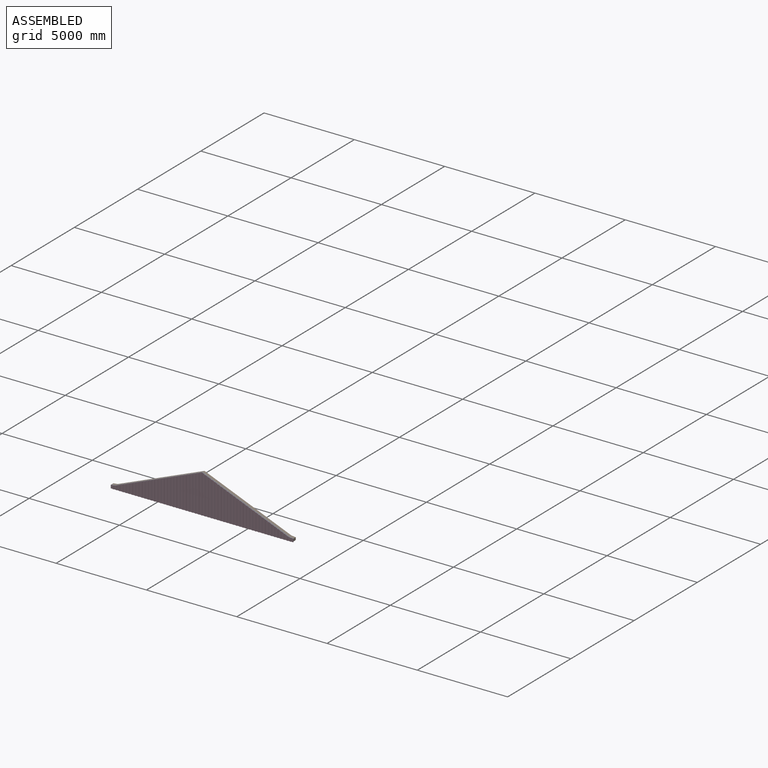
[diagram: assembled view]
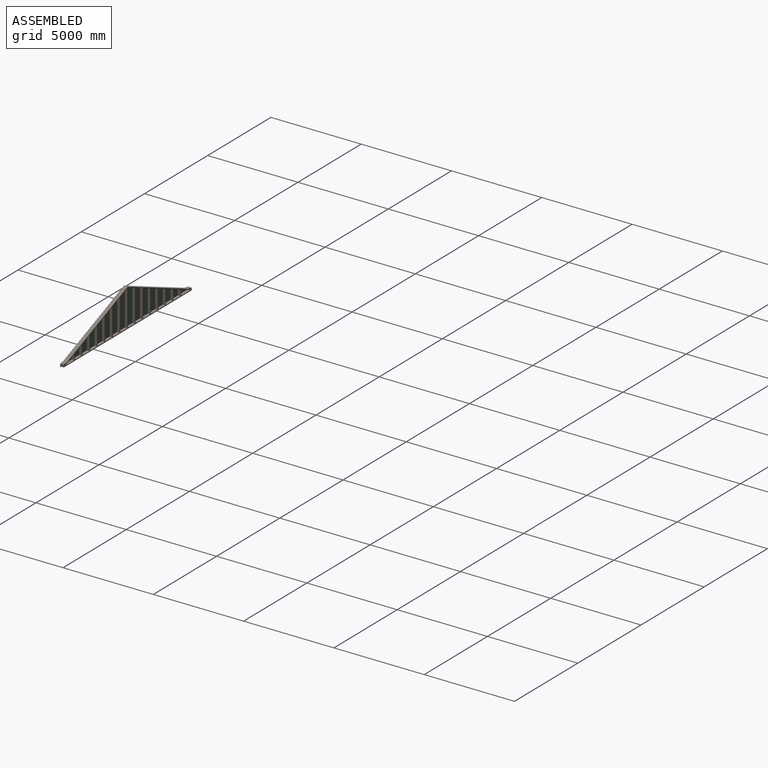
[diagram: assembled view, second angle]
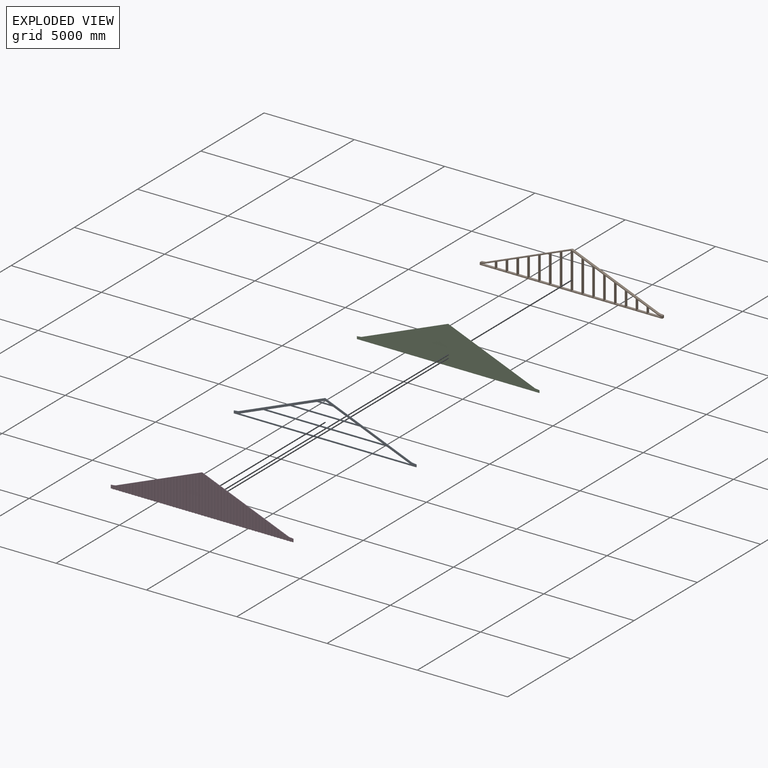
[diagram: exploded view]
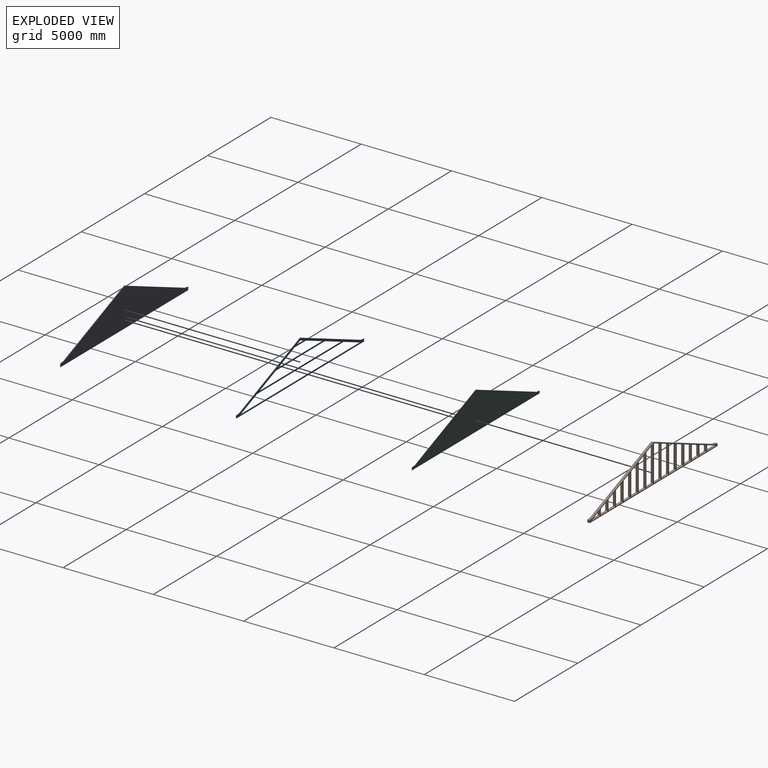
[diagram: exploded view, second angle]
ASSEMBLY  parts=4 mates=3
PART A: 24 faces, bbox 10100x28x2110.3 mm
  f0: plane 4808.93x1942.93mm, normal (-0.37,0,0.93), area 145224.8mm2, adj f1,f15,f16,f17
  f1: plane 241.07x28mm, normal (-0.11,0,0.99), area 6793mm2, adj f0,f2,f15,f16
  f2: plane 140.1x28mm, normal (-1,0,0), area 3922.9mm2, adj f1,f3,f15,f16
  f3: plane 10100x28mm, normal (0,0,-1), area 282800mm2, adj f2,f15,f16,f19
  f4: plane 9459.33x28mm, normal (0,0,1), area 264861.2mm2, adj f5,f15,f16,f20
  f5: plane 1311.8x530mm, normal (0.37,0,-0.93), area 39614.9mm2, adj f4,f6,f15,f16
  f6: plane 6835.74x28mm, normal (0,0,-1), area 191400.6mm2, adj f5,f15,f16,f20
  f7: plane 6489.22x28mm, normal (0,0,1), area 181698.3mm2, adj f8,f15,f16,f21
  f8: plane 1311.8x530mm, normal (0.37,0,-0.93), area 39614.9mm2, adj f7,f9,f15,f16
  f9: plane 3865.63x28mm, normal (0,0,-1), area 108237.7mm2, adj f8,f15,f16,f21
  f10: plane 3519.12x28mm, normal (0,0,1), area 98535.3mm2, adj f11,f15,f16,f22
  f11: plane 1311.8x530mm, normal (0.37,0,-0.93), area 39614.9mm2, adj f10,f12,f15,f16
  f12: plane 895.53x28mm, normal (0,0,-1), area 25074.8mm2, adj f11,f15,f16,f22
  f13: plane 549.02x28mm, normal (0,0,1), area 15372.4mm2, adj f14,f15,f16,f23
  f14: plane 274.51x110.91mm, normal (0.37,0,-0.93), area 8289.8mm2, adj f13,f15,f16,f23
  f15: plane 10100x2110.33mm, normal (0,-1,0), area 2765023.7mm2, adj f0,f1,f2,f3,f4,f5,f6,f7
  f16: plane 10100x2110.33mm, normal (0,1,0), area 2765023.7mm2, adj f0,f1,f2,f3,f4,f5,f6,f7
  f17: plane 4808.93x1942.93mm, normal (0.37,0,0.93), area 145224.8mm2, adj f0,f15,f16,f18
  f18: plane 241.07x28mm, normal (0.11,0,0.99), area 6793mm2, adj f15,f16,f17,f19
  f19: plane 140.1x28mm, normal (1,0,0), area 3922.9mm2, adj f3,f15,f16,f18
  f20: plane 1311.8x530mm, normal (-0.37,0,-0.93), area 39614.9mm2, adj f4,f6,f15,f16
  f21: plane 1311.8x530mm, normal (-0.37,0,-0.93), area 39614.9mm2, adj f7,f9,f15,f16
  f22: plane 1311.8x530mm, normal (-0.37,0,-0.93), area 39614.9mm2, adj f10,f12,f15,f16
  f23: plane 274.51x110.91mm, normal (-0.37,0,-0.93), area 8289.8mm2, adj f13,f14,f15,f16
PART B: 71 faces, bbox 10100x145x2110.3 mm
  f0: plane 555x224.23mm, normal (0.37,0,-0.93), area 86795.1mm2, adj f1,f34,f35,f36
  f1: plane 1522.88x145mm, normal (-1,0,0), area 220817.1mm2, adj f0,f2,f35,f36
  f2: plane 555x145mm, normal (0,0,1), area 80475mm2, adj f1,f34,f35,f36
  f3: plane 555x145mm, normal (0,0,1), area 80475mm2, adj f4,f26,f35,f36
  f4: plane 1056.23x145mm, normal (1,0,0), area 153152.8mm2, adj f3,f5,f35,f36
  f5: plane 555x224.23mm, normal (0.37,0,-0.93), area 86795.1mm2, adj f4,f26,f35,f36
  f6: plane 1038.05x145mm, normal (-1,0,0), area 150516.5mm2, adj f7,f27,f35,f36
  f7: plane 555x145mm, normal (0,0,1), area 80475mm2, adj f6,f8,f35,f36
  f8: plane 813.81x145mm, normal (1,0,0), area 118002.5mm2, adj f7,f27,f35,f36
  f9: plane 769.25x310.8mm, normal (0.37,0,-0.93), area 120301.3mm2, adj f10,f28,f35,f36
  f10: plane 310.8x145mm, normal (-1,0,0), area 45065.7mm2, adj f9,f28,f35,f36
  f11: plane 4808.93x1942.93mm, normal (-0.37,0,0.93), area 752057.1mm2, adj f12,f35,f36,f48
  f12: plane 241.07x145mm, normal (-0.11,0,0.99), area 35178.1mm2, adj f11,f13,f35,f36
  f13: plane 145x140.1mm, normal (-1,0,0), area 20315.2mm2, adj f12,f29,f35,f36
  f14: plane 555x145mm, normal (0,0,1), area 80475mm2, adj f15,f30,f35,f36
  f15: plane 571.39x145mm, normal (1,0,0), area 82852.2mm2, adj f14,f16,f35,f36
  f16: plane 555x224.23mm, normal (0.37,0,-0.93), area 86795.1mm2, adj f15,f30,f35,f36
  f17: plane 553.21x145mm, normal (-1,0,0), area 80215.9mm2, adj f18,f31,f35,f36
  f18: plane 555x145mm, normal (0,0,1), area 80475mm2, adj f17,f19,f35,f36
  f19: plane 328.98x145mm, normal (1,0,0), area 47701.9mm2, adj f18,f31,f35,f36
  f20: plane 555x145mm, normal (0,0,1), area 80475mm2, adj f21,f32,f35,f36
  f21: plane 1783.47x145mm, normal (1,0,0), area 258603.6mm2, adj f20,f22,f35,f36
  f22: plane 555x224.23mm, normal (0.37,0,-0.93), area 86795.1mm2, adj f21,f32,f35,f36
  f23: plane 1765.29x145mm, normal (-1,0,0), area 255967.3mm2, adj f24,f33,f35,f36
  f24: plane 555x145mm, normal (0,0,1), area 80475mm2, adj f23,f25,f35,f36
  f25: plane 1541.06x145mm, normal (1,0,0), area 223453.3mm2, adj f24,f33,f35,f36
  f26: plane 1280.46x145mm, normal (-1,0,0), area 185666.8mm2, adj f3,f5,f35,f36
  f27: plane 555x224.23mm, normal (0.37,0,-0.93), area 86795.1mm2, adj f6,f8,f35,f36
  f28: plane 769.25x145mm, normal (0,0,1), area 111541.4mm2, adj f9,f10,f35,f36
  f29: plane 10100x145mm, normal (0,0,-1), area 1464500mm2, adj f13,f35,f36,f50
  f30: plane 795.63x145mm, normal (-1,0,0), area 115366.2mm2, adj f14,f16,f35,f36
  f31: plane 555x224.23mm, normal (0.37,0,-0.93), area 86795.1mm2, adj f17,f19,f35,f36
  f32: plane 2007.71x145mm, normal (-1,0,0), area 291117.6mm2, adj f20,f22,f35,f36
  f33: plane 555x224.23mm, normal (0.37,0,-0.93), area 86795.1mm2, adj f23,f25,f35,f36
  f34: plane 1298.64x145mm, normal (1,0,0), area 188303.1mm2, adj f0,f2,f35,f36
  f35: plane 10100x2110.33mm, normal (0,1,0), area 1710469.9mm2, adj f0,f1,f2,f3,f4,f5,f6,f7
  f36: plane 10100x2110.33mm, normal (0,-1,0), area 1710469.9mm2, adj f0,f1,f2,f3,f4,f5,f6,f7
  f37: plane 555x224.23mm, normal (-0.37,0,-0.93), area 86795.1mm2, adj f35,f36,f38,f70
  f38: plane 1522.88x145mm, normal (1,0,0), area 220817.1mm2, adj f35,f36,f37,f39
  f39: plane 555x145mm, normal (0,0,1), area 80475mm2, adj f35,f36,f38,f70
  f40: plane 555x145mm, normal (0,0,1), area 80475mm2, adj f35,f36,f41,f63
  f41: plane 1056.23x145mm, normal (-1,0,0), area 153152.8mm2, adj f35,f36,f40,f42
  f42: plane 555x224.23mm, normal (-0.37,0,-0.93), area 86795.1mm2, adj f35,f36,f41,f63
  f43: plane 1038.05x145mm, normal (1,0,0), area 150516.5mm2, adj f35,f36,f44,f64
  f44: plane 555x145mm, normal (0,0,1), area 80475mm2, adj f35,f36,f43,f45
  f45: plane 813.81x145mm, normal (-1,0,0), area 118002.5mm2, adj f35,f36,f44,f64
  f46: plane 769.25x310.8mm, normal (-0.37,0,-0.93), area 120301.3mm2, adj f35,f36,f47,f65
  f47: plane 310.8x145mm, normal (1,0,0), area 45065.7mm2, adj f35,f36,f46,f65
  f48: plane 4808.93x1942.93mm, normal (0.37,0,0.93), area 752057.1mm2, adj f11,f35,f36,f49
  f49: plane 241.07x145mm, normal (0.11,0,0.99), area 35178.1mm2, adj f35,f36,f48,f50
  f50: plane 145x140.1mm, normal (1,0,0), area 20315.2mm2, adj f29,f35,f36,f49
  f51: plane 555x145mm, normal (0,0,1), area 80475mm2, adj f35,f36,f52,f66
  f52: plane 571.39x145mm, normal (-1,0,0), area 82852.2mm2, adj f35,f36,f51,f53
  f53: plane 555x224.23mm, normal (-0.37,0,-0.93), area 86795.1mm2, adj f35,f36,f52,f66
  f54: plane 553.21x145mm, normal (1,0,0), area 80215.9mm2, adj f35,f36,f55,f67
  f55: plane 555x145mm, normal (0,0,1), area 80475mm2, adj f35,f36,f54,f56
  f56: plane 328.98x145mm, normal (-1,0,0), area 47701.9mm2, adj f35,f36,f55,f67
  f57: plane 555x145mm, normal (0,0,1), area 80475mm2, adj f35,f36,f58,f68
  f58: plane 1783.47x145mm, normal (-1,0,0), area 258603.6mm2, adj f35,f36,f57,f59
  f59: plane 555x224.23mm, normal (-0.37,0,-0.93), area 86795.1mm2, adj f35,f36,f58,f68
  f60: plane 1765.29x145mm, normal (1,0,0), area 255967.3mm2, adj f35,f36,f61,f69
  f61: plane 555x145mm, normal (0,0,1), area 80475mm2, adj f35,f36,f60,f62
  f62: plane 1541.06x145mm, normal (-1,0,0), area 223453.3mm2, adj f35,f36,f61,f69
  f63: plane 1280.46x145mm, normal (1,0,0), area 185666.8mm2, adj f35,f36,f40,f42
  f64: plane 555x224.23mm, normal (-0.37,0,-0.93), area 86795.1mm2, adj f35,f36,f43,f45
  f65: plane 769.25x145mm, normal (0,0,1), area 111541.4mm2, adj f35,f36,f46,f47
  f66: plane 795.63x145mm, normal (1,0,0), area 115366.2mm2, adj f35,f36,f51,f53
  f67: plane 555x224.23mm, normal (-0.37,0,-0.93), area 86795.1mm2, adj f35,f36,f54,f56
  f68: plane 2007.71x145mm, normal (1,0,0), area 291117.6mm2, adj f35,f36,f57,f59
  f69: plane 555x224.23mm, normal (-0.37,0,-0.93), area 86795.1mm2, adj f35,f36,f60,f62
  f70: plane 1298.64x145mm, normal (-1,0,0), area 188303.1mm2, adj f35,f36,f37,f39
PART C: 9 faces, bbox 10100x9x2110.3 mm
  f0: plane 4808.93x1942.93mm, normal (-0.37,0,0.93), area 46679.4mm2, adj f1,f4,f5,f6
  f1: plane 241.07x27.29mm, normal (-0.11,0,0.99), area 2183.5mm2, adj f0,f2,f4,f5
  f2: plane 140.1x9mm, normal (-1,0,0), area 1260.9mm2, adj f1,f3,f4,f5
  f3: plane 10100x9mm, normal (0,0,-1), area 90900mm2, adj f2,f4,f5,f8
  f4: plane 10100x2110.33mm, normal (0,-1,0), area 11027578.8mm2, adj f0,f1,f2,f3,f6,f7,f8
  f5: plane 10100x2110.33mm, normal (0,1,0), area 11027578.8mm2, adj f0,f1,f2,f3,f6,f7,f8
  f6: plane 4808.93x1942.93mm, normal (0.37,0,0.93), area 46679.4mm2, adj f0,f4,f5,f7
  f7: plane 241.07x27.29mm, normal (0.11,0,0.99), area 2183.5mm2, adj f4,f5,f6,f8
  f8: plane 140.1x9mm, normal (1,0,0), area 1260.9mm2, adj f3,f4,f5,f7
PART D: 237 faces, bbox 10100x44x2145.3 mm
  f0: plane 368.83x131mm, normal (0,-1,0), area 44849.9mm2, adj f1,f115,f118,f119
  f1: plane 368.83x22mm, normal (-1,0,0), area 8114.2mm2, adj f0,f2,f118,f119
  f2: plane 386.61x44mm, normal (0,-1,0), area 16619.6mm2, adj f1,f3,f118,f119
  f3: plane 386.61x22mm, normal (1,0,0), area 8505.3mm2, adj f2,f4,f118,f119
  f4: plane 439.53x131mm, normal (0,-1,0), area 54112.2mm2, adj f3,f5,f118,f119
  f5: plane 439.53x22mm, normal (-1,0,0), area 9669.7mm2, adj f4,f6,f118,f119
  f6: plane 457.31x44mm, normal (0,-1,0), area 19730.6mm2, adj f5,f7,f118,f119
  f7: plane 457.31x22mm, normal (1,0,0), area 10060.8mm2, adj f6,f8,f118,f119
  f8: plane 510.24x131mm, normal (0,-1,0), area 63374.5mm2, adj f7,f9,f118,f119
  f9: plane 510.24x22mm, normal (-1,0,0), area 11225.2mm2, adj f8,f10,f118,f119
  f10: plane 528.02x44mm, normal (0,-1,0), area 22841.6mm2, adj f9,f11,f118,f119
  f11: plane 528.02x22mm, normal (1,0,0), area 11616.3mm2, adj f10,f12,f118,f119
  f12: plane 580.94x131mm, normal (0,-1,0), area 72636.8mm2, adj f11,f13,f118,f119
  f13: plane 580.94x22mm, normal (-1,0,0), area 12780.7mm2, adj f12,f14,f118,f119
  f14: plane 598.72x44mm, normal (0,-1,0), area 25952.6mm2, adj f13,f15,f118,f119
  f15: plane 598.72x22mm, normal (1,0,0), area 13171.8mm2, adj f14,f16,f118,f119
  f16: plane 651.65x131mm, normal (0,-1,0), area 81899.1mm2, adj f15,f17,f118,f119
  f17: plane 651.65x22mm, normal (-1,0,0), area 14336.2mm2, adj f16,f18,f118,f119
  f18: plane 669.42x44mm, normal (0,-1,0), area 29063.6mm2, adj f17,f19,f118,f119
  f19: plane 669.42x22mm, normal (1,0,0), area 14727.3mm2, adj f18,f20,f118,f119
  f20: plane 722.35x131mm, normal (0,-1,0), area 91161.4mm2, adj f19,f21,f118,f119
  f21: plane 722.35x22mm, normal (-1,0,0), area 15891.7mm2, adj f20,f22,f118,f119
  f22: plane 740.13x44mm, normal (0,-1,0), area 32174.6mm2, adj f21,f23,f118,f119
  f23: plane 740.13x22mm, normal (1,0,0), area 16282.8mm2, adj f22,f24,f118,f119
  f24: plane 793.06x131mm, normal (0,-1,0), area 100423.7mm2, adj f23,f25,f118,f119
  f25: plane 793.06x22mm, normal (-1,0,0), area 17447.2mm2, adj f24,f26,f118,f119
  f26: plane 810.83x44mm, normal (0,-1,0), area 35285.6mm2, adj f25,f27,f118,f119
  f27: plane 810.83x22mm, normal (1,0,0), area 17838.3mm2, adj f26,f28,f118,f119
  f28: plane 863.76x131mm, normal (0,-1,0), area 109686mm2, adj f27,f29,f118,f119
  f29: plane 863.76x22mm, normal (-1,0,0), area 19002.7mm2, adj f28,f30,f118,f119
  f30: plane 881.54x44mm, normal (0,-1,0), area 38396.6mm2, adj f29,f31,f118,f119
  f31: plane 881.54x22mm, normal (1,0,0), area 19393.8mm2, adj f30,f32,f118,f119
  f32: plane 934.47x131mm, normal (0,-1,0), area 118948.3mm2, adj f31,f33,f118,f119
  f33: plane 934.47x22mm, normal (-1,0,0), area 20558.2mm2, adj f32,f34,f118,f119
  f34: plane 952.24x44mm, normal (0,-1,0), area 41507.6mm2, adj f33,f35,f118,f119
  f35: plane 952.24x22mm, normal (1,0,0), area 20949.3mm2, adj f34,f36,f118,f119
  f36: plane 1005.17x131mm, normal (0,-1,0), area 128210.6mm2, adj f35,f37,f118,f119
  f37: plane 1005.17x22mm, normal (-1,0,0), area 22113.7mm2, adj f36,f38,f118,f119
  f38: plane 1022.95x44mm, normal (0,-1,0), area 44618.6mm2, adj f37,f39,f118,f119
  f39: plane 1022.95x22mm, normal (1,0,0), area 22504.8mm2, adj f38,f40,f118,f119
  f40: plane 1075.88x131mm, normal (0,-1,0), area 137472.9mm2, adj f39,f41,f118,f119
  f41: plane 1075.88x22mm, normal (-1,0,0), area 23669.3mm2, adj f40,f42,f118,f119
  f42: plane 1093.65x44mm, normal (0,-1,0), area 47729.6mm2, adj f41,f43,f118,f119
  f43: plane 1093.65x22mm, normal (1,0,0), area 24060.3mm2, adj f42,f44,f118,f119
  f44: plane 1146.58x131mm, normal (0,-1,0), area 146735.2mm2, adj f43,f45,f118,f119
  f45: plane 1146.58x22mm, normal (-1,0,0), area 25224.8mm2, adj f44,f46,f118,f119
  f46: plane 1164.36x44mm, normal (0,-1,0), area 50840.6mm2, adj f45,f47,f118,f119
  f47: plane 1164.36x22mm, normal (1,0,0), area 25615.8mm2, adj f46,f48,f118,f119
  f48: plane 1217.28x131mm, normal (0,-1,0), area 155997.5mm2, adj f47,f49,f118,f119
  f49: plane 1217.28x22mm, normal (-1,0,0), area 26780.3mm2, adj f48,f50,f118,f119
  f50: plane 1235.06x44mm, normal (0,-1,0), area 53951.6mm2, adj f49,f51,f118,f119
  f51: plane 1235.06x22mm, normal (1,0,0), area 27171.3mm2, adj f50,f52,f118,f119
  f52: plane 1287.99x131mm, normal (0,-1,0), area 165259.8mm2, adj f51,f53,f118,f119
  f53: plane 1287.99x22mm, normal (-1,0,0), area 28335.8mm2, adj f52,f54,f118,f119
  f54: plane 1305.77x44mm, normal (0,-1,0), area 57062.6mm2, adj f53,f55,f118,f119
  f55: plane 1305.77x22mm, normal (1,0,0), area 28726.9mm2, adj f54,f56,f118,f119
  f56: plane 1358.69x131mm, normal (0,-1,0), area 174522.1mm2, adj f55,f57,f118,f119
  f57: plane 1358.69x22mm, normal (-1,0,0), area 29891.3mm2, adj f56,f58,f118,f119
  f58: plane 1376.47x44mm, normal (0,-1,0), area 60173.6mm2, adj f57,f59,f118,f119
  f59: plane 1376.47x22mm, normal (1,0,0), area 30282.4mm2, adj f58,f60,f118,f119
  f60: plane 1429.4x131mm, normal (0,-1,0), area 183784.4mm2, adj f59,f61,f118,f119
  f61: plane 1429.4x22mm, normal (-1,0,0), area 31446.8mm2, adj f60,f62,f118,f119
  f62: plane 1447.18x44mm, normal (0,-1,0), area 63284.6mm2, adj f61,f63,f118,f119
  f63: plane 1447.18x22mm, normal (1,0,0), area 31837.9mm2, adj f62,f64,f118,f119
  f64: plane 1500.1x131mm, normal (0,-1,0), area 193046.7mm2, adj f63,f65,f118,f119
  f65: plane 1500.1x22mm, normal (-1,0,0), area 33002.3mm2, adj f64,f66,f118,f119
  f66: plane 1517.88x44mm, normal (0,-1,0), area 66395.6mm2, adj f65,f67,f118,f119
  f67: plane 1517.88x22mm, normal (1,0,0), area 33393.4mm2, adj f66,f68,f118,f119
  f68: plane 1570.81x131mm, normal (0,-1,0), area 202309mm2, adj f67,f69,f118,f119
  f69: plane 1570.81x22mm, normal (-1,0,0), area 34557.8mm2, adj f68,f70,f118,f119
  f70: plane 1588.58x44mm, normal (0,-1,0), area 69506.6mm2, adj f69,f71,f118,f119
  f71: plane 1588.58x22mm, normal (1,0,0), area 34948.9mm2, adj f70,f72,f118,f119
  f72: plane 1641.51x131mm, normal (0,-1,0), area 211571.3mm2, adj f71,f73,f118,f119
  f73: plane 1641.51x22mm, normal (-1,0,0), area 36113.3mm2, adj f72,f74,f118,f119
  f74: plane 1659.29x44mm, normal (0,-1,0), area 72617.6mm2, adj f73,f75,f118,f119
  f75: plane 1659.29x22mm, normal (1,0,0), area 36504.4mm2, adj f74,f76,f118,f119
  f76: plane 1712.22x131mm, normal (0,-1,0), area 220833.6mm2, adj f75,f77,f118,f119
  f77: plane 1712.22x22mm, normal (-1,0,0), area 37668.8mm2, adj f76,f78,f118,f119
  f78: plane 1729.99x44mm, normal (0,-1,0), area 75728.6mm2, adj f77,f79,f118,f119
  f79: plane 1729.99x22mm, normal (1,0,0), area 38059.9mm2, adj f78,f80,f118,f119
  f80: plane 1782.92x131mm, normal (0,-1,0), area 230095.9mm2, adj f79,f81,f118,f119
  f81: plane 1782.92x22mm, normal (-1,0,0), area 39224.3mm2, adj f80,f82,f118,f119
  f82: plane 1800.7x44mm, normal (0,-1,0), area 78839.6mm2, adj f81,f83,f118,f119
  f83: plane 1800.7x22mm, normal (1,0,0), area 39615.4mm2, adj f82,f84,f118,f119
  f84: plane 1853.63x131mm, normal (0,-1,0), area 239358.2mm2, adj f83,f85,f118,f119
  f85: plane 1853.63x22mm, normal (-1,0,0), area 40779.8mm2, adj f84,f86,f118,f119
  f86: plane 1871.4x44mm, normal (0,-1,0), area 81950.6mm2, adj f85,f87,f118,f119
  f87: plane 1871.4x22mm, normal (1,0,0), area 41170.9mm2, adj f86,f88,f118,f119
  f88: plane 1924.33x131mm, normal (0,-1,0), area 248620.5mm2, adj f87,f89,f118,f119
  f89: plane 1924.33x22mm, normal (-1,0,0), area 42335.3mm2, adj f88,f90,f118,f119
  f90: plane 1942.11x44mm, normal (0,-1,0), area 85061.6mm2, adj f89,f91,f118,f119
  f91: plane 1942.11x22mm, normal (1,0,0), area 42726.4mm2, adj f90,f92,f118,f119
  f92: plane 1995.03x131mm, normal (0,-1,0), area 257882.8mm2, adj f91,f93,f118,f119
  f93: plane 1995.03x22mm, normal (-1,0,0), area 43890.8mm2, adj f92,f94,f118,f119
  f94: plane 2012.81x44mm, normal (0,-1,0), area 88172.6mm2, adj f93,f95,f118,f119
  f95: plane 2012.81x22mm, normal (1,0,0), area 44281.9mm2, adj f94,f96,f118,f119
  f96: plane 2065.74x131mm, normal (0,-1,0), area 267145.1mm2, adj f95,f97,f118,f119
  f97: plane 2065.74x22mm, normal (-1,0,0), area 45446.3mm2, adj f96,f98,f118,f119
  f98: plane 2083.52x44mm, normal (0,-1,0), area 91283.6mm2, adj f97,f99,f118,f119
  f99: plane 2083.52x22mm, normal (1,0,0), area 45837.4mm2, adj f98,f100,f118,f119
  f100: plane 2136.44x131mm, normal (0,-1,0), area 276407.4mm2, adj f99,f101,f118,f119
  f101: plane 2136.44x22mm, normal (-1,0,0), area 47001.8mm2, adj f100,f102,f118,f119
  f102: plane 2145.33x44mm, normal (0,-1,0), area 94199.1mm2, adj f101,f118,f119,f221,f236
  f103: plane 10100x2145.33mm, normal (0,1,0), area 11381078.8mm2, adj f116,f117,f118,f119,f234,f235,f236
  f104: plane 189.6x128mm, normal (0,-1,0), area 23340.9mm2, adj f105,f116,f117,f119
  f105: plane 189.6x22mm, normal (-1,0,0), area 4171.1mm2, adj f104,f106,f117,f119
  f106: plane 194.58x44mm, normal (0,-1,0), area 8451.8mm2, adj f105,f107,f117,f119
  f107: plane 194.58x22mm, normal (1,0,0), area 4280.7mm2, adj f106,f108,f117,f119
  f108: plane 227.42x131mm, normal (0,-1,0), area 27018.9mm2, adj f107,f109,f117,f118,f119
  f109: plane 227.42x22mm, normal (-1,0,0), area 5003.2mm2, adj f108,f110,f118,f119
  f110: plane 245.2x44mm, normal (0,-1,0), area 10397.6mm2, adj f109,f111,f118,f119
  f111: plane 245.2x22mm, normal (1,0,0), area 5394.3mm2, adj f110,f112,f118,f119
  f112: plane 298.12x131mm, normal (0,-1,0), area 35587.6mm2, adj f111,f113,f118,f119
  f113: plane 298.12x22mm, normal (-1,0,0), area 6558.7mm2, adj f112,f114,f118,f119
  f114: plane 315.9x44mm, normal (0,-1,0), area 13508.6mm2, adj f113,f115,f118,f119
  f115: plane 315.9x22mm, normal (1,0,0), area 6949.8mm2, adj f0,f114,f118,f119
  f116: plane 175.1x22mm, normal (-1,0,0), area 3852.3mm2, adj f103,f104,f117,f119
  f117: plane 241.07x44mm, normal (-0.11,0,0.99), area 6311.6mm2, adj f103,f104,f105,f106,f107,f108,f116,f118
  f118: plane 4808.93x1942.93mm, normal (-0.37,0,0.93), area 142815.8mm2, adj f0,f1,f2,f3,f4,f5,f6,f7
  f119: plane 10100x44mm, normal (0,0,-1), area 277376mm2, adj f0,f1,f2,f3,f4,f5,f6,f7
  f120: plane 368.83x131mm, normal (0,-1,0), area 44849.9mm2, adj f119,f121,f233,f236
  f121: plane 368.83x22mm, normal (1,0,0), area 8114.2mm2, adj f119,f120,f122,f236
  f122: plane 386.61x44mm, normal (0,-1,0), area 16619.6mm2, adj f119,f121,f123,f236
  f123: plane 386.61x22mm, normal (-1,0,0), area 8505.3mm2, adj f119,f122,f124,f236
  f124: plane 439.53x131mm, normal (0,-1,0), area 54112.2mm2, adj f119,f123,f125,f236
  f125: plane 439.53x22mm, normal (1,0,0), area 9669.7mm2, adj f119,f124,f126,f236
  f126: plane 457.31x44mm, normal (0,-1,0), area 19730.6mm2, adj f119,f125,f127,f236
  f127: plane 457.31x22mm, normal (-1,0,0), area 10060.8mm2, adj f119,f126,f128,f236
  f128: plane 510.24x131mm, normal (0,-1,0), area 63374.5mm2, adj f119,f127,f129,f236
  f129: plane 510.24x22mm, normal (1,0,0), area 11225.2mm2, adj f119,f128,f130,f236
  f130: plane 528.02x44mm, normal (0,-1,0), area 22841.6mm2, adj f119,f129,f131,f236
  f131: plane 528.02x22mm, normal (-1,0,0), area 11616.3mm2, adj f119,f130,f132,f236
  f132: plane 580.94x131mm, normal (0,-1,0), area 72636.8mm2, adj f119,f131,f133,f236
  f133: plane 580.94x22mm, normal (1,0,0), area 12780.7mm2, adj f119,f132,f134,f236
  f134: plane 598.72x44mm, normal (0,-1,0), area 25952.6mm2, adj f119,f133,f135,f236
  f135: plane 598.72x22mm, normal (-1,0,0), area 13171.8mm2, adj f119,f134,f136,f236
  f136: plane 651.65x131mm, normal (0,-1,0), area 81899.1mm2, adj f119,f135,f137,f236
  f137: plane 651.65x22mm, normal (1,0,0), area 14336.2mm2, adj f119,f136,f138,f236
  f138: plane 669.42x44mm, normal (0,-1,0), area 29063.6mm2, adj f119,f137,f139,f236
  f139: plane 669.42x22mm, normal (-1,0,0), area 14727.3mm2, adj f119,f138,f140,f236
  f140: plane 722.35x131mm, normal (0,-1,0), area 91161.4mm2, adj f119,f139,f141,f236
  f141: plane 722.35x22mm, normal (1,0,0), area 15891.7mm2, adj f119,f140,f142,f236
  f142: plane 740.13x44mm, normal (0,-1,0), area 32174.6mm2, adj f119,f141,f143,f236
  f143: plane 740.13x22mm, normal (-1,0,0), area 16282.8mm2, adj f119,f142,f144,f236
  f144: plane 793.06x131mm, normal (0,-1,0), area 100423.7mm2, adj f119,f143,f145,f236
  f145: plane 793.06x22mm, normal (1,0,0), area 17447.2mm2, adj f119,f144,f146,f236
  f146: plane 810.83x44mm, normal (0,-1,0), area 35285.6mm2, adj f119,f145,f147,f236
  f147: plane 810.83x22mm, normal (-1,0,0), area 17838.3mm2, adj f119,f146,f148,f236
  f148: plane 863.76x131mm, normal (0,-1,0), area 109686mm2, adj f119,f147,f149,f236
  f149: plane 863.76x22mm, normal (1,0,0), area 19002.7mm2, adj f119,f148,f150,f236
  f150: plane 881.54x44mm, normal (0,-1,0), area 38396.6mm2, adj f119,f149,f151,f236
  f151: plane 881.54x22mm, normal (-1,0,0), area 19393.8mm2, adj f119,f150,f152,f236
  f152: plane 934.47x131mm, normal (0,-1,0), area 118948.3mm2, adj f119,f151,f153,f236
  f153: plane 934.47x22mm, normal (1,0,0), area 20558.2mm2, adj f119,f152,f154,f236
  f154: plane 952.24x44mm, normal (0,-1,0), area 41507.6mm2, adj f119,f153,f155,f236
  f155: plane 952.24x22mm, normal (-1,0,0), area 20949.3mm2, adj f119,f154,f156,f236
  f156: plane 1005.17x131mm, normal (0,-1,0), area 128210.6mm2, adj f119,f155,f157,f236
  f157: plane 1005.17x22mm, normal (1,0,0), area 22113.7mm2, adj f119,f156,f158,f236
  f158: plane 1022.95x44mm, normal (0,-1,0), area 44618.6mm2, adj f119,f157,f159,f236
  f159: plane 1022.95x22mm, normal (-1,0,0), area 22504.8mm2, adj f119,f158,f160,f236
  f160: plane 1075.88x131mm, normal (0,-1,0), area 137472.9mm2, adj f119,f159,f161,f236
  f161: plane 1075.88x22mm, normal (1,0,0), area 23669.3mm2, adj f119,f160,f162,f236
  f162: plane 1093.65x44mm, normal (0,-1,0), area 47729.6mm2, adj f119,f161,f163,f236
  f163: plane 1093.65x22mm, normal (-1,0,0), area 24060.3mm2, adj f119,f162,f164,f236
  f164: plane 1146.58x131mm, normal (0,-1,0), area 146735.2mm2, adj f119,f163,f165,f236
  f165: plane 1146.58x22mm, normal (1,0,0), area 25224.8mm2, adj f119,f164,f166,f236
  f166: plane 1164.36x44mm, normal (0,-1,0), area 50840.6mm2, adj f119,f165,f167,f236
  f167: plane 1164.36x22mm, normal (-1,0,0), area 25615.8mm2, adj f119,f166,f168,f236
  f168: plane 1217.28x131mm, normal (0,-1,0), area 155997.5mm2, adj f119,f167,f169,f236
  f169: plane 1217.28x22mm, normal (1,0,0), area 26780.3mm2, adj f119,f168,f170,f236
  f170: plane 1235.06x44mm, normal (0,-1,0), area 53951.6mm2, adj f119,f169,f171,f236
  f171: plane 1235.06x22mm, normal (-1,0,0), area 27171.3mm2, adj f119,f170,f172,f236
  f172: plane 1287.99x131mm, normal (0,-1,0), area 165259.8mm2, adj f119,f171,f173,f236
  f173: plane 1287.99x22mm, normal (1,0,0), area 28335.8mm2, adj f119,f172,f174,f236
  f174: plane 1305.77x44mm, normal (0,-1,0), area 57062.6mm2, adj f119,f173,f175,f236
  f175: plane 1305.77x22mm, normal (-1,0,0), area 28726.9mm2, adj f119,f174,f176,f236
  f176: plane 1358.69x131mm, normal (0,-1,0), area 174522.1mm2, adj f119,f175,f177,f236
  f177: plane 1358.69x22mm, normal (1,0,0), area 29891.3mm2, adj f119,f176,f178,f236
  f178: plane 1376.47x44mm, normal (0,-1,0), area 60173.6mm2, adj f119,f177,f179,f236
  f179: plane 1376.47x22mm, normal (-1,0,0), area 30282.4mm2, adj f119,f178,f180,f236
  f180: plane 1429.4x131mm, normal (0,-1,0), area 183784.4mm2, adj f119,f179,f181,f236
  f181: plane 1429.4x22mm, normal (1,0,0), area 31446.8mm2, adj f119,f180,f182,f236
  f182: plane 1447.18x44mm, normal (0,-1,0), area 63284.6mm2, adj f119,f181,f183,f236
  f183: plane 1447.18x22mm, normal (-1,0,0), area 31837.9mm2, adj f119,f182,f184,f236
  f184: plane 1500.1x131mm, normal (0,-1,0), area 193046.7mm2, adj f119,f183,f185,f236
  f185: plane 1500.1x22mm, normal (1,0,0), area 33002.3mm2, adj f119,f184,f186,f236
  f186: plane 1517.88x44mm, normal (0,-1,0), area 66395.6mm2, adj f119,f185,f187,f236
  f187: plane 1517.88x22mm, normal (-1,0,0), area 33393.4mm2, adj f119,f186,f188,f236
  f188: plane 1570.81x131mm, normal (0,-1,0), area 202309mm2, adj f119,f187,f189,f236
  f189: plane 1570.81x22mm, normal (1,0,0), area 34557.8mm2, adj f119,f188,f190,f236
  f190: plane 1588.58x44mm, normal (0,-1,0), area 69506.6mm2, adj f119,f189,f191,f236
  f191: plane 1588.58x22mm, normal (-1,0,0), area 34948.9mm2, adj f119,f190,f192,f236
  f192: plane 1641.51x131mm, normal (0,-1,0), area 211571.3mm2, adj f119,f191,f193,f236
  f193: plane 1641.51x22mm, normal (1,0,0), area 36113.3mm2, adj f119,f192,f194,f236
  f194: plane 1659.29x44mm, normal (0,-1,0), area 72617.6mm2, adj f119,f193,f195,f236
  f195: plane 1659.29x22mm, normal (-1,0,0), area 36504.4mm2, adj f119,f194,f196,f236
  f196: plane 1712.22x131mm, normal (0,-1,0), area 220833.6mm2, adj f119,f195,f197,f236
  f197: plane 1712.22x22mm, normal (1,0,0), area 37668.8mm2, adj f119,f196,f198,f236
  f198: plane 1729.99x44mm, normal (0,-1,0), area 75728.6mm2, adj f119,f197,f199,f236
  f199: plane 1729.99x22mm, normal (-1,0,0), area 38059.9mm2, adj f119,f198,f200,f236
  f200: plane 1782.92x131mm, normal (0,-1,0), area 230095.9mm2, adj f119,f199,f201,f236
  f201: plane 1782.92x22mm, normal (1,0,0), area 39224.3mm2, adj f119,f200,f202,f236
  f202: plane 1800.7x44mm, normal (0,-1,0), area 78839.6mm2, adj f119,f201,f203,f236
  f203: plane 1800.7x22mm, normal (-1,0,0), area 39615.4mm2, adj f119,f202,f204,f236
  f204: plane 1853.63x131mm, normal (0,-1,0), area 239358.2mm2, adj f119,f203,f205,f236
  f205: plane 1853.63x22mm, normal (1,0,0), area 40779.8mm2, adj f119,f204,f206,f236
  f206: plane 1871.4x44mm, normal (0,-1,0), area 81950.6mm2, adj f119,f205,f207,f236
  f207: plane 1871.4x22mm, normal (-1,0,0), area 41170.9mm2, adj f119,f206,f208,f236
  f208: plane 1924.33x131mm, normal (0,-1,0), area 248620.5mm2, adj f119,f207,f209,f236
  f209: plane 1924.33x22mm, normal (1,0,0), area 42335.3mm2, adj f119,f208,f210,f236
  f210: plane 1942.11x44mm, normal (0,-1,0), area 85061.6mm2, adj f119,f209,f211,f236
  f211: plane 1942.11x22mm, normal (-1,0,0), area 42726.4mm2, adj f119,f210,f212,f236
  f212: plane 1995.03x131mm, normal (0,-1,0), area 257882.8mm2, adj f119,f211,f213,f236
  f213: plane 1995.03x22mm, normal (1,0,0), area 43890.8mm2, adj f119,f212,f214,f236
  f214: plane 2012.81x44mm, normal (0,-1,0), area 88172.6mm2, adj f119,f213,f215,f236
  f215: plane 2012.81x22mm, normal (-1,0,0), area 44281.9mm2, adj f119,f214,f216,f236
  f216: plane 2065.74x131mm, normal (0,-1,0), area 267145.1mm2, adj f119,f215,f217,f236
  f217: plane 2065.74x22mm, normal (1,0,0), area 45446.3mm2, adj f119,f216,f218,f236
  f218: plane 2083.52x44mm, normal (0,-1,0), area 91283.6mm2, adj f119,f217,f219,f236
  f219: plane 2083.52x22mm, normal (-1,0,0), area 45837.4mm2, adj f119,f218,f220,f236
  f220: plane 2136.44x131mm, normal (0,-1,0), area 276407.4mm2, adj f119,f219,f221,f236
  f221: plane 2136.44x22mm, normal (1,0,0), area 47001.8mm2, adj f102,f119,f220,f236
  f222: plane 189.6x128mm, normal (0,-1,0), area 23340.9mm2, adj f119,f223,f234,f235
  f223: plane 189.6x22mm, normal (1,0,0), area 4171.1mm2, adj f119,f222,f224,f235
  f224: plane 194.58x44mm, normal (0,-1,0), area 8451.8mm2, adj f119,f223,f225,f235
  f225: plane 194.58x22mm, normal (-1,0,0), area 4280.7mm2, adj f119,f224,f226,f235
  f226: plane 227.42x131mm, normal (0,-1,0), area 27018.9mm2, adj f119,f225,f227,f235,f236
  f227: plane 227.42x22mm, normal (1,0,0), area 5003.2mm2, adj f119,f226,f228,f236
  f228: plane 245.2x44mm, normal (0,-1,0), area 10397.6mm2, adj f119,f227,f229,f236
  f229: plane 245.2x22mm, normal (-1,0,0), area 5394.3mm2, adj f119,f228,f230,f236
  f230: plane 298.12x131mm, normal (0,-1,0), area 35587.6mm2, adj f119,f229,f231,f236
  f231: plane 298.12x22mm, normal (1,0,0), area 6558.7mm2, adj f119,f230,f232,f236
  f232: plane 315.9x44mm, normal (0,-1,0), area 13508.6mm2, adj f119,f231,f233,f236
  f233: plane 315.9x22mm, normal (-1,0,0), area 6949.8mm2, adj f119,f120,f232,f236
  f234: plane 175.1x22mm, normal (1,0,0), area 3852.3mm2, adj f103,f119,f222,f235
  f235: plane 241.07x44mm, normal (0.11,0,0.99), area 6311.6mm2, adj f103,f222,f223,f224,f225,f226,f234,f236
  f236: plane 4808.93x1942.93mm, normal (0.37,0,0.93), area 142815.8mm2, adj f102,f103,f118,f120,f121,f122,f123,f124
PLACE A t=(-2341.98,2785.15,-204.8)mm
PLACE B t=(-2341.98,2794.15,-204.8)mm
PLACE C t=(-2341.98,2794.15,-204.8)mm
PLACE D t=(-2341.98,2757.15,-204.8)mm
MATE fastened A.f16 <-> C.f4  axis (0,1,0) through (-2341.98,2785.15,4560.53)mm
MATE fastened D.f103 <-> A.f15  axis (0,1,0) through (-2341.98,2757.15,4560.53)mm
MATE fastened C.f5 <-> B.f36  axis (0,1,0) through (-2341.98,2794.15,4560.53)mm
